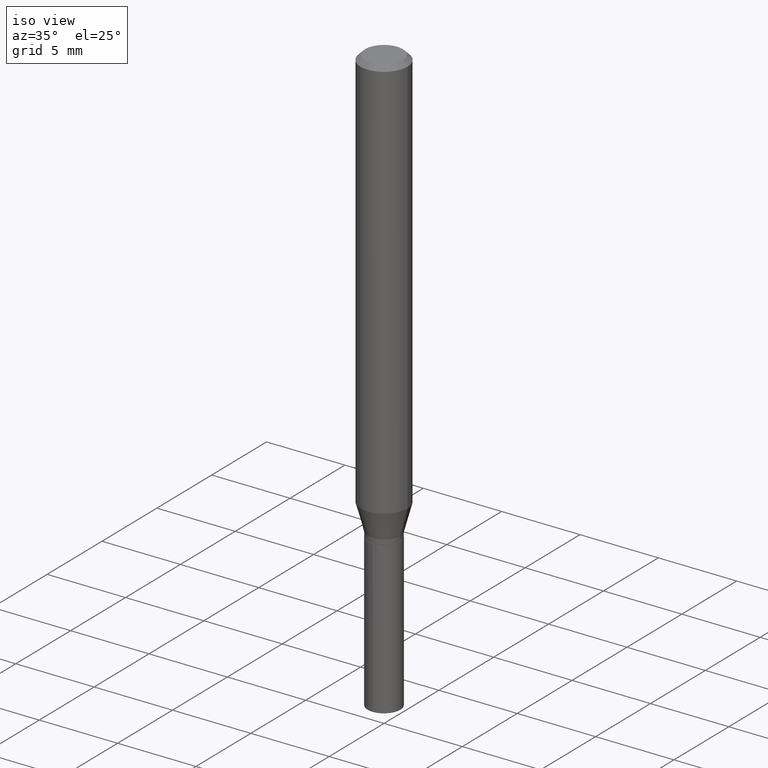
[diagram: clean part render]
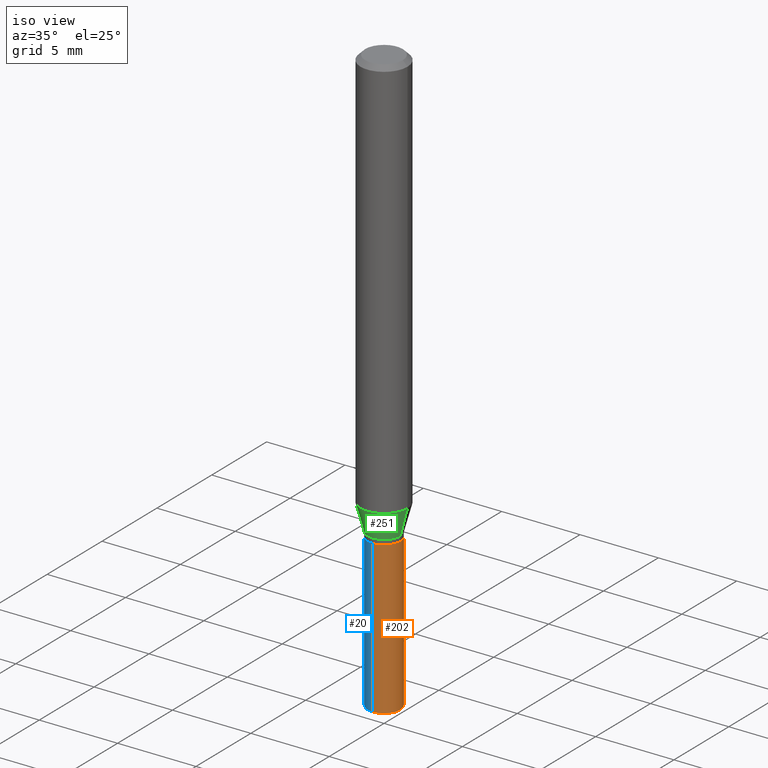
[diagram: same view with three faces highlighted in distinct colors, each labeled with its STEP entity id]
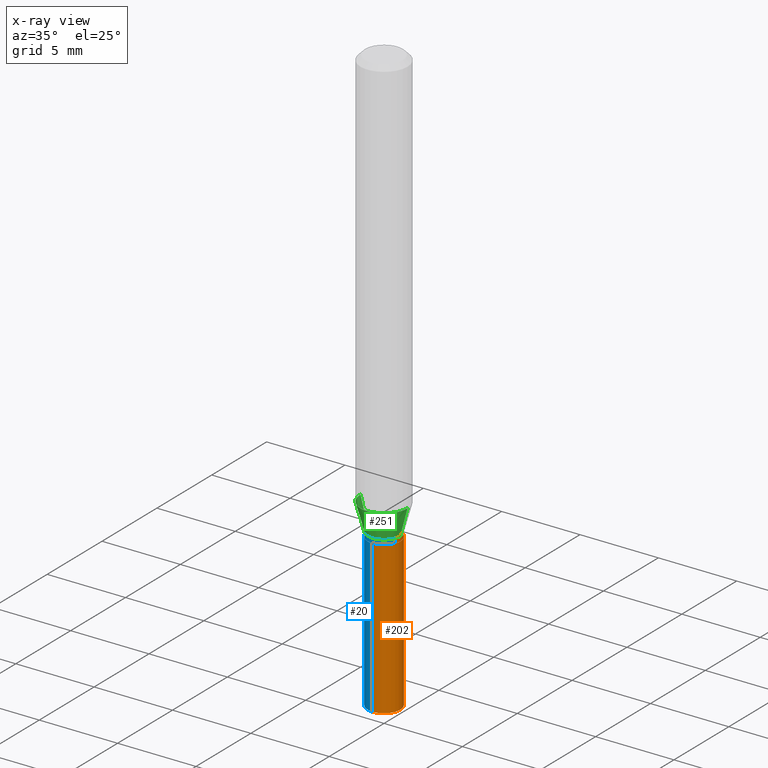
[diagram: x-ray of the same camera — body ghosted, the three highlighted faces saturated]
A machine part, iso view with three faces highlighted in distinct colors.
The next image is the same camera in x-ray (body ghosted, the three faces saturated) — at least one of them is partly hidden behind the body in this view.
Their STEP definitions:

[orange] entity #202 — the highlighted cylindrical surface (edge-blend (fillet) strip) has radius 1.0401 mm, axis along (-0, 0, 1).
#2 = VECTOR ( 'NONE', #254, 39.37007874015748143 ) ;
#5 = LINE ( 'NONE', #114, #212 ) ;
#18 = CARTESIAN_POINT ( 'NONE',  ( -2.859523216512258664E-16, -0.04095000000000382362, -1.094499999999999806 ) ) ;
#25 = DIRECTION ( 'NONE',  ( -2.445458899330790108E-29, 3.491495526022433205E-15, 1.000000000000000000 ) ) ;
#47 = CIRCLE ( 'NONE', #146, 0.04095000000000000029 ) ;
#49 = DIRECTION ( 'NONE',  ( -6.982962677686266711E-15, -1.000000000000000000, 3.335589735853801395E-15 ) ) ;
#52 = DIRECTION ( 'NONE',  ( -2.445458899330790108E-29, 3.491495526022433205E-15, 1.000000000000000000 ) ) ;
#75 = EDGE_LOOP ( 'NONE', ( #274, #406, #367, #300 ) ) ;
#90 = VERTEX_POINT ( 'NONE', #182 ) ;
#100 = EDGE_CURVE ( 'NONE', #90, #276, #5, .T. ) ;
#105 = EDGE_CURVE ( 'NONE', #276, #195, #169, .T. ) ;
#114 = CARTESIAN_POINT ( 'NONE',  ( -2.859523216512258664E-16, -0.04095000000000382362, -1.094499999999999806 ) ) ;
#126 = CARTESIAN_POINT ( 'NONE',  ( 2.909672502937971186E-16, 0.04094999999999617696, -1.094500000000000028 ) ) ;
#142 = DIRECTION ( 'NONE',  ( -2.445458899330790108E-29, 3.491495526022433205E-15, 1.000000000000000000 ) ) ;
#146 = AXIS2_PLACEMENT_3D ( 'NONE', #357, #25, #481 ) ;
#169 = CIRCLE ( 'NONE', #278, 0.04095000000000000029 ) ;
#182 = CARTESIAN_POINT ( 'NONE',  ( -2.859523216512164494E-16, -0.04095000000000515589, -1.477004701398552555 ) ) ;
#195 = VERTEX_POINT ( 'NONE', #126 ) ;
#202 = ADVANCED_FACE ( 'NONE', ( #275 ), #307, .T. ) ;
#209 = CARTESIAN_POINT ( 'NONE',  ( 2.909672502937970692E-16, 0.04094999999999483775, -1.477004701398553221 ) ) ;
#212 = VECTOR ( 'NONE', #484, 39.37007874015748143 ) ;
#254 = DIRECTION ( 'NONE',  ( -2.445458899330790108E-29, 3.491495526022433599E-15, 1.000000000000000000 ) ) ;
#261 = CARTESIAN_POINT ( 'NONE',  ( 2.909672502937877015E-16, 0.04094999999999617696, -1.094500000000000028 ) ) ;
#267 = CARTESIAN_POINT ( 'NONE',  ( 2.676565608369631794E-29, -3.821426325363822773E-15, -1.094499999999999806 ) ) ;
#274 = ORIENTED_EDGE ( 'NONE', *, *, #436, .T. ) ;
#275 = FACE_OUTER_BOUND ( 'NONE', #75, .T. ) ;
#276 = VERTEX_POINT ( 'NONE', #18 ) ;
#278 = AXIS2_PLACEMENT_3D ( 'NONE', #267, #142, #355 ) ;
#300 = ORIENTED_EDGE ( 'NONE', *, *, #100, .F. ) ;
#307 = CYLINDRICAL_SURFACE ( 'NONE', #390, 0.04095000000000000029 ) ;
#341 = VERTEX_POINT ( 'NONE', #209 ) ;
#355 = DIRECTION ( 'NONE',  ( -6.982962677686266711E-15, -1.000000000000000000, 3.335589735853801395E-15 ) ) ;
#357 = CARTESIAN_POINT ( 'NONE',  ( 3.611965134440589814E-29, -5.156939778979417294E-15, -1.477004701398552999 ) ) ;
#367 = ORIENTED_EDGE ( 'NONE', *, *, #105, .F. ) ;
#390 = AXIS2_PLACEMENT_3D ( 'NONE', #468, #52, #49 ) ;
#406 = ORIENTED_EDGE ( 'NONE', *, *, #490, .T. ) ;
#436 = EDGE_CURVE ( 'NONE', #90, #341, #47, .T. ) ;
#445 = LINE ( 'NONE', #261, #2 ) ;
#468 = CARTESIAN_POINT ( 'NONE',  ( 2.676565608369631794E-29, -3.821426325363822773E-15, -1.094499999999999806 ) ) ;
#481 = DIRECTION ( 'NONE',  ( -6.982962677686266711E-15, -1.000000000000000000, 6.671179471707602790E-15 ) ) ;
#484 = DIRECTION ( 'NONE',  ( -2.445458899330790108E-29, 3.491495526022433599E-15, 1.000000000000000000 ) ) ;
#490 = EDGE_CURVE ( 'NONE', #341, #195, #445, .T. ) ;

[blue] entity #20 — the highlighted cylindrical surface (edge-blend (fillet) strip) has radius 1.0401 mm, axis along (-0, 0, 1).
#2 = VECTOR ( 'NONE', #254, 39.37007874015748143 ) ;
#5 = LINE ( 'NONE', #114, #212 ) ;
#9 = EDGE_LOOP ( 'NONE', ( #226, #153, #50, #219 ) ) ;
#18 = CARTESIAN_POINT ( 'NONE',  ( -2.859523216512258664E-16, -0.04095000000000382362, -1.094499999999999806 ) ) ;
#20 = ADVANCED_FACE ( 'NONE', ( #35 ), #180, .T. ) ;
#24 = AXIS2_PLACEMENT_3D ( 'NONE', #257, #398, #179 ) ;
#32 = DIRECTION ( 'NONE',  ( -6.982962677686266711E-15, -1.000000000000000000, 3.335589735853801395E-15 ) ) ;
#35 = FACE_OUTER_BOUND ( 'NONE', #9, .T. ) ;
#50 = ORIENTED_EDGE ( 'NONE', *, *, #100, .T. ) ;
#90 = VERTEX_POINT ( 'NONE', #182 ) ;
#100 = EDGE_CURVE ( 'NONE', #90, #276, #5, .T. ) ;
#114 = CARTESIAN_POINT ( 'NONE',  ( -2.859523216512258664E-16, -0.04095000000000382362, -1.094499999999999806 ) ) ;
#117 = CIRCLE ( 'NONE', #24, 0.04095000000000000029 ) ;
#126 = CARTESIAN_POINT ( 'NONE',  ( 2.909672502937971186E-16, 0.04094999999999617696, -1.094500000000000028 ) ) ;
#134 = CIRCLE ( 'NONE', #404, 0.04095000000000000029 ) ;
#153 = ORIENTED_EDGE ( 'NONE', *, *, #437, .T. ) ;
#179 = DIRECTION ( 'NONE',  ( -6.982962677686266711E-15, -1.000000000000000000, 6.671179471707602790E-15 ) ) ;
#180 = CYLINDRICAL_SURFACE ( 'NONE', #259, 0.04095000000000000029 ) ;
#182 = CARTESIAN_POINT ( 'NONE',  ( -2.859523216512164494E-16, -0.04095000000000515589, -1.477004701398552555 ) ) ;
#195 = VERTEX_POINT ( 'NONE', #126 ) ;
#209 = CARTESIAN_POINT ( 'NONE',  ( 2.909672502937970692E-16, 0.04094999999999483775, -1.477004701398553221 ) ) ;
#212 = VECTOR ( 'NONE', #484, 39.37007874015748143 ) ;
#219 = ORIENTED_EDGE ( 'NONE', *, *, #409, .F. ) ;
#226 = ORIENTED_EDGE ( 'NONE', *, *, #490, .F. ) ;
#245 = CARTESIAN_POINT ( 'NONE',  ( 2.676565608369631794E-29, -3.821426325363822773E-15, -1.094499999999999806 ) ) ;
#254 = DIRECTION ( 'NONE',  ( -2.445458899330790108E-29, 3.491495526022433599E-15, 1.000000000000000000 ) ) ;
#257 = CARTESIAN_POINT ( 'NONE',  ( 3.611965134440589814E-29, -5.156939778979417294E-15, -1.477004701398552999 ) ) ;
#258 = DIRECTION ( 'NONE',  ( -2.445458899330790108E-29, 3.491495526022433205E-15, 1.000000000000000000 ) ) ;
#259 = AXIS2_PLACEMENT_3D ( 'NONE', #292, #258, #402 ) ;
#261 = CARTESIAN_POINT ( 'NONE',  ( 2.909672502937877015E-16, 0.04094999999999617696, -1.094500000000000028 ) ) ;
#276 = VERTEX_POINT ( 'NONE', #18 ) ;
#292 = CARTESIAN_POINT ( 'NONE',  ( 2.676565608369631794E-29, -3.821426325363822773E-15, -1.094499999999999806 ) ) ;
#341 = VERTEX_POINT ( 'NONE', #209 ) ;
#398 = DIRECTION ( 'NONE',  ( -2.445458899330790108E-29, 3.491495526022433205E-15, 1.000000000000000000 ) ) ;
#402 = DIRECTION ( 'NONE',  ( -6.982962677686266711E-15, -1.000000000000000000, 3.335589735853801395E-15 ) ) ;
#404 = AXIS2_PLACEMENT_3D ( 'NONE', #245, #479, #32 ) ;
#409 = EDGE_CURVE ( 'NONE', #195, #276, #134, .T. ) ;
#437 = EDGE_CURVE ( 'NONE', #341, #90, #117, .T. ) ;
#445 = LINE ( 'NONE', #261, #2 ) ;
#479 = DIRECTION ( 'NONE',  ( -2.445458899330790108E-29, 3.491495526022433205E-15, 1.000000000000000000 ) ) ;
#484 = DIRECTION ( 'NONE',  ( -2.445458899330790108E-29, 3.491495526022433599E-15, 1.000000000000000000 ) ) ;
#490 = EDGE_CURVE ( 'NONE', #341, #195, #445, .T. ) ;

[green] entity #251 — the highlighted conical surface has half-angle 15 deg.
#11 = DIRECTION ( 'NONE',  ( -2.445468806185136597E-29, 3.491481338843145583E-15, 1.000000000000000000 ) ) ;
#53 = EDGE_CURVE ( 'NONE', #347, #151, #296, .T. ) ;
#58 = CARTESIAN_POINT ( 'NONE',  ( -0.04095000000000000029, -3.508113594501465415E-15, -1.082200000000000051 ) ) ;
#69 = CARTESIAN_POINT ( 'NONE',  ( 0.04095000000000000029, -4.064433426547304748E-15, -1.082200000000000051 ) ) ;
#106 = ORIENTED_EDGE ( 'NONE', *, *, #290, .T. ) ;
#118 = LINE ( 'NONE', #465, #213 ) ;
#124 = DIRECTION ( 'NONE',  ( -0.2588190451025214611, 5.211531920934551042E-15, 0.9659258262890682012 ) ) ;
#127 = AXIS2_PLACEMENT_3D ( 'NONE', #241, #11, #203 ) ;
#151 = VERTEX_POINT ( 'NONE', #375 ) ;
#157 = DIRECTION ( 'NONE',  ( 0.2588190451025214611, 1.565188264969621573E-15, 0.9659258262890682012 ) ) ;
#164 = CARTESIAN_POINT ( 'NONE',  ( 2.646486342053554932E-29, -3.778481104896052208E-15, -1.082200000000000051 ) ) ;
#170 = VECTOR ( 'NONE', #124, 39.37007874015747433 ) ;
#183 = VERTEX_POINT ( 'NONE', #58 ) ;
#203 = DIRECTION ( 'NONE',  ( 1.000000000000000000, -6.982962677686264344E-15, 0.000000000000000000 ) ) ;
#205 = DIRECTION ( 'NONE',  ( 1.000000000000000000, -6.982962677686264344E-15, 0.000000000000000000 ) ) ;
#213 = VECTOR ( 'NONE', #157, 39.37007874015747433 ) ;
#233 = EDGE_LOOP ( 'NONE', ( #235, #106, #448, #425 ) ) ;
#235 = ORIENTED_EDGE ( 'NONE', *, *, #263, .F. ) ;
#241 = CARTESIAN_POINT ( 'NONE',  ( 2.646486342053554932E-29, -3.778481104896052208E-15, -1.082200000000000051 ) ) ;
#251 = ADVANCED_FACE ( 'NONE', ( #343 ), #338, .T. ) ;
#262 = EDGE_CURVE ( 'NONE', #466, #151, #118, .T. ) ;
#263 = EDGE_CURVE ( 'NONE', #183, #347, #353, .T. ) ;
#265 = CARTESIAN_POINT ( 'NONE',  ( 2.481294631676114097E-29, -3.542631122816684991E-15, -1.014649880383003078 ) ) ;
#269 = CIRCLE ( 'NONE', #475, 0.04095000000000000029 ) ;
#290 = EDGE_CURVE ( 'NONE', #183, #466, #269, .T. ) ;
#296 = CIRCLE ( 'NONE', #401, 0.05905000000000013016 ) ;
#309 = DIRECTION ( 'NONE',  ( -2.445468806185136597E-29, 3.491481338843145583E-15, 1.000000000000000000 ) ) ;
#336 = DIRECTION ( 'NONE',  ( 1.000000000000000000, -6.982962677686265133E-15, 0.000000000000000000 ) ) ;
#338 = CONICAL_SURFACE ( 'NONE', #127, 0.04095000000000000029, 0.2617993877991501295 ) ;
#343 = FACE_OUTER_BOUND ( 'NONE', #233, .T. ) ;
#347 = VERTEX_POINT ( 'NONE', #391 ) ;
#353 = LINE ( 'NONE', #463, #170 ) ;
#375 = CARTESIAN_POINT ( 'NONE',  ( 0.05905000000000013016, -3.954975068934059911E-15, -1.014649880383003078 ) ) ;
#391 = CARTESIAN_POINT ( 'NONE',  ( -0.05905000000000013016, -3.123055637350344709E-15, -1.014649880383003078 ) ) ;
#401 = AXIS2_PLACEMENT_3D ( 'NONE', #265, #446, #336 ) ;
#425 = ORIENTED_EDGE ( 'NONE', *, *, #53, .F. ) ;
#446 = DIRECTION ( 'NONE',  ( -2.445468806185136597E-29, 3.491481338843145583E-15, 1.000000000000000000 ) ) ;
#448 = ORIENTED_EDGE ( 'NONE', *, *, #262, .T. ) ;
#463 = CARTESIAN_POINT ( 'NONE',  ( -0.04095000000000000029, -3.487513854602290884E-15, -1.082200000000000051 ) ) ;
#465 = CARTESIAN_POINT ( 'NONE',  ( 0.04095000000000000029, -4.064433426547304748E-15, -1.082200000000000051 ) ) ;
#466 = VERTEX_POINT ( 'NONE', #69 ) ;
#475 = AXIS2_PLACEMENT_3D ( 'NONE', #164, #309, #205 ) ;